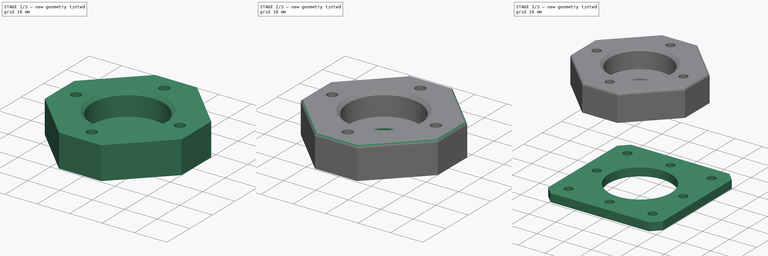
[diagram: build sequence overview — one tinted view per stage of 3, left to right]
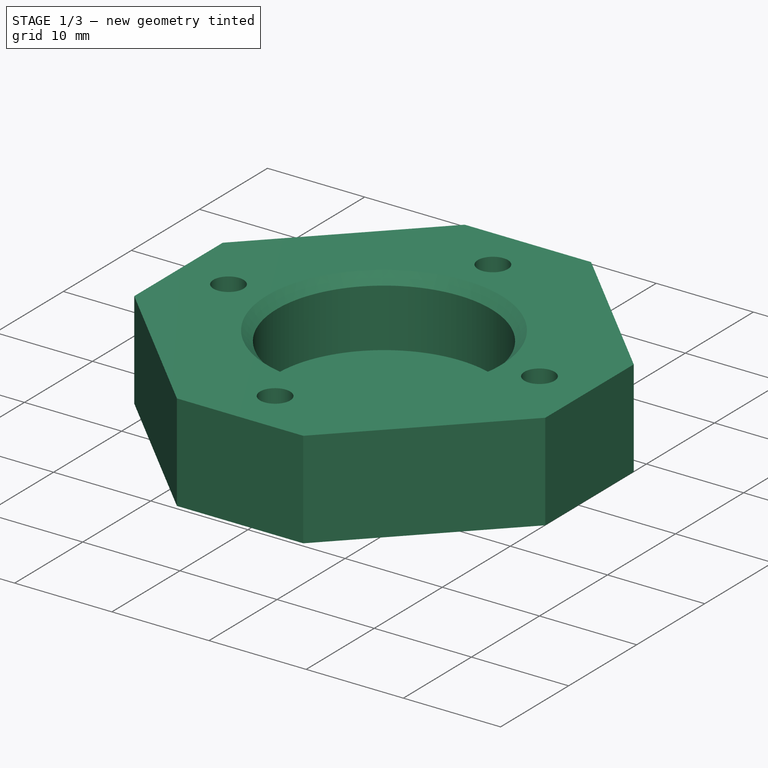
[diagram: stage 1 of 3 — iso view after this stage's code; geometry added in this stage tinted green]
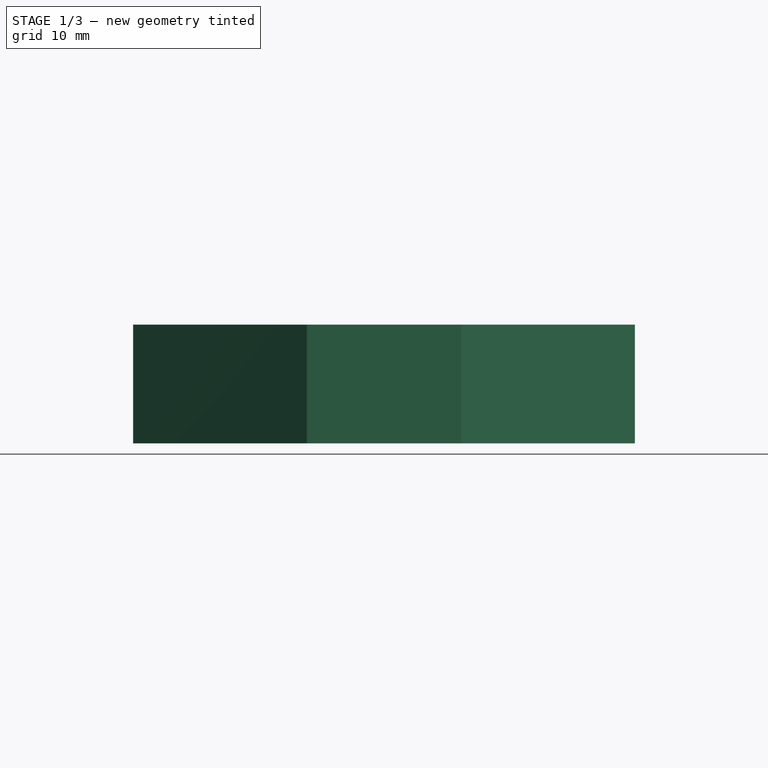
[diagram: stage 1 of 3 — front view after this stage's code; geometry added in this stage tinted green]
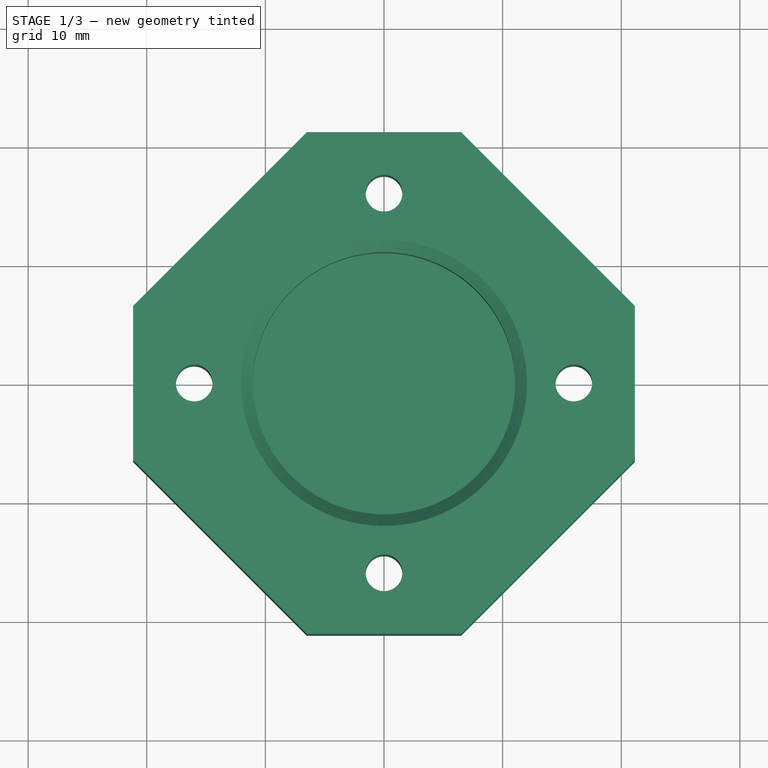
[diagram: stage 1 of 3 — top view after this stage's code; geometry added in this stage tinted green]
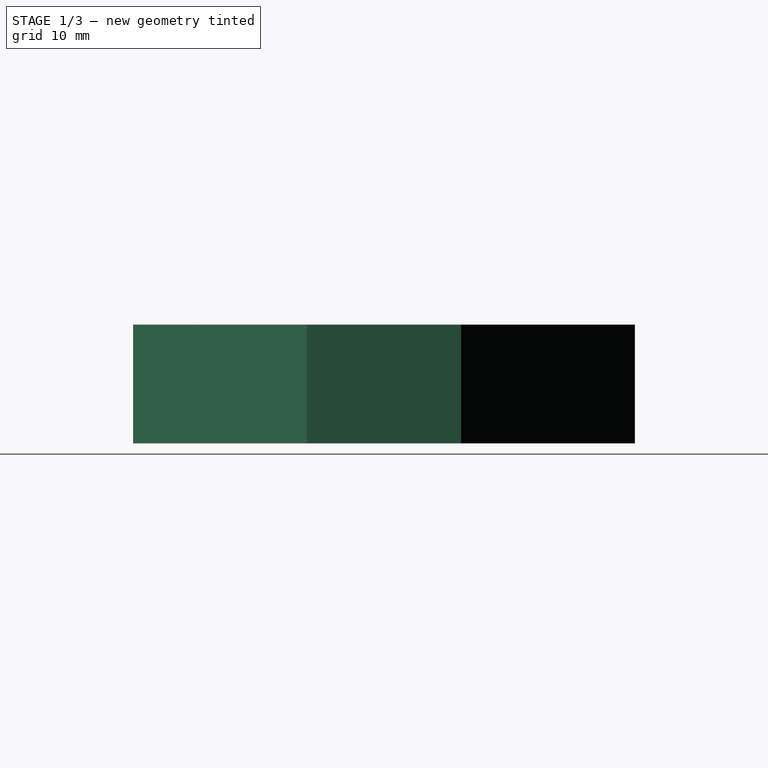
[diagram: stage 1 of 3 — right view after this stage's code; geometry added in this stage tinted green]
FCSTD DOCUMENT  (FreeCAD 0.16R6706 (Git))
Label: ZMotor_Festlager
License: All rights reserved
LicenseURL: http://en.wikipedia.org/wiki/All_rights_reserved
objects: Sketcher::SketchObject×5, PartDesign::Pocket×3, PartDesign::Pad×2, PartDesign::Chamfer×2, PartDesign::Fillet×1
note: 18 computed .brp shape members not serialized (recipe doc carries the construction recipe); baked Part::Feature solids carry a one-line shape summary decoded from their .brp

FEATURE [Sketcher::SketchObject] Sketch002
  Placement = pos=(0,0,33) rot=(0,0,1;0rad)
  sketch-geometry (13):
    g0: LineSegment StartX=21.15 StartY=-6.5 StartZ=0 EndX=21.15 EndY=6.5 EndZ=0
    g1: LineSegment StartX=21.15 StartY=6.5 StartZ=0 EndX=6.5 EndY=21.15 EndZ=0
    g2: LineSegment StartX=6.5 StartY=21.15 StartZ=0 EndX=-6.5 EndY=21.15 EndZ=0
    g3: LineSegment StartX=-6.5 StartY=21.15 StartZ=0 EndX=-21.15 EndY=6.5 EndZ=0
    g4: LineSegment StartX=-21.15 StartY=6.5 StartZ=0 EndX=-21.15 EndY=-6.5 EndZ=0
    g5: LineSegment StartX=-21.15 StartY=-6.5 StartZ=0 EndX=-6.5 EndY=-21.15 EndZ=0
    g6: LineSegment StartX=-6.5 StartY=-21.15 StartZ=0 EndX=6.5 EndY=-21.15 EndZ=0
    g7: LineSegment StartX=6.5 StartY=-21.15 StartZ=0 EndX=21.15 EndY=-6.5 EndZ=0
    g8: Circle [constr] CenterX=0 CenterY=0 CenterZ=0 NormalX=0 NormalY=0 NormalZ=1 Radius=22.1263
    g9: Circle CenterX=-16 CenterY=0 CenterZ=0 NormalX=0 NormalY=0 NormalZ=1 Radius=1.55
    g10: Circle CenterX=0 CenterY=16 CenterZ=0 NormalX=0 NormalY=0 NormalZ=1 Radius=1.55
    g11: Circle CenterX=16 CenterY=0 CenterZ=0 NormalX=0 NormalY=0 NormalZ=1 Radius=1.55
    g12: Circle CenterX=0 CenterY=-16 CenterZ=0 NormalX=0 NormalY=0 NormalZ=1 Radius=1.55
  constraints (38):
    c: Coincident(g0,g1)
    c: Coincident(g1,g2)
    c: Coincident(g2,g3)
    c: Coincident(g3,g4)
    c: Coincident(g4,g5)
    c: Coincident(g5,g6)
    c: Coincident(g6,g7)
    c: Coincident(g7,g0)
    c: PointOnObject(g0,g8)
    c: PointOnObject(g1,g8)
    c: PointOnObject(g2,g8)
    c: PointOnObject(g3,g8)
    c: PointOnObject(g4,g8)
    c: PointOnObject(g5,g8)
    c: PointOnObject(g6,g8)
    c: PointOnObject(g7,g8)
    c: Coincident(g8,g-1)
    c: Horizontal(g2)
    c: Horizontal(g6)
    c: Equal(g6,g2)
    c: DistanceY(g5,g2) = 42.3
    c: DistanceX(g4,g0) = 42.3
    c: Vertical(g0)
    c: Vertical(g4)
    c: Equal(g0,g4)
    c: DistanceX(g2,g2) = 13
    c: PointOnObject(g9,g-1)
    c: Radius(g9) = 1.55
    c: DistanceX(g9,g-1) = 16
    c: PointOnObject(g10,g-2)
    c: PointOnObject(g11,g-1)
    c: PointOnObject(g12,g-2)
    c: Equal(g9,g10)
    c: Equal(g10,g11)
    c: Equal(g11,g12)
    c: Symmetric(g9,g11,g-2)
    c: Symmetric(g12,g10,g-1)
    c: DistanceY(g12,g-1) = 16
FEATURE [PartDesign::Pad] Pad001
  Length = 10
  Length2 = 100
  Placement = pos=(0,0,33) rot=(0,0,1;0rad)
  Sketch = -> Sketch002
  Type = 0
FEATURE [Sketcher::SketchObject] Sketch003
  Placement = pos=(0,0,43) rot=(0,0,1;0rad)
  Support = -> Pad001 [Face14]
  sketch-geometry (1):
    g0: Circle CenterX=0 CenterY=0 CenterZ=0 NormalX=0 NormalY=0 NormalZ=1 Radius=11.05
  constraints (2):
    c: Coincident(g0,g-1)
    c: Radius(g0) = 11.05
FEATURE [PartDesign::Pocket] Pocket001
  Length = 7
  Placement = pos=(0,0,33) rot=(0,0,1;0rad)
  Sketch = -> Sketch003
  Type = 0
FEATURE [PartDesign::Chamfer] Chamfer001
  Base = -> Pocket001 [Edge26]
  Placement = pos=(0,0,33) rot=(0,0,1;0rad)
  Size = 1
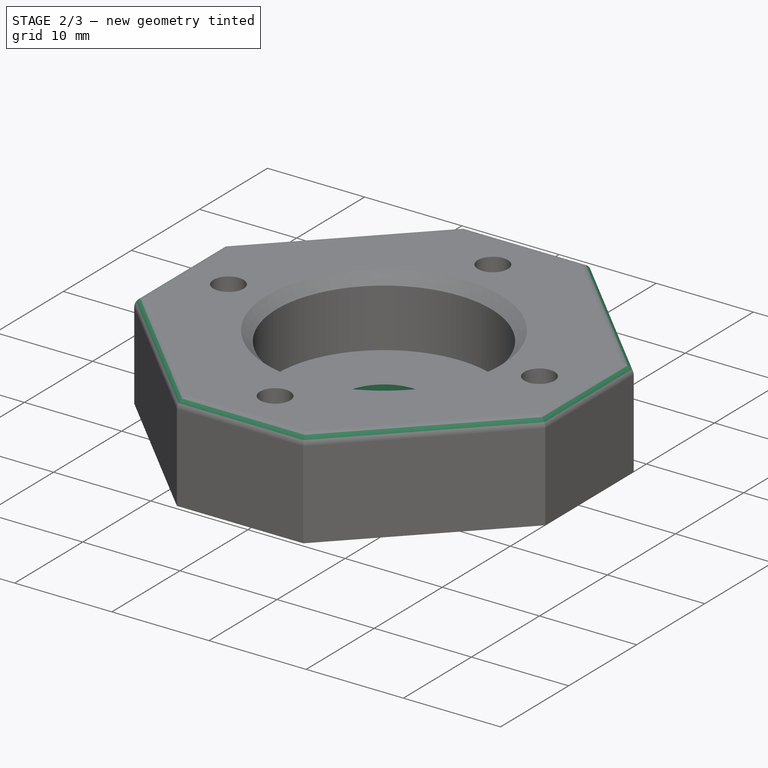
[diagram: stage 2 of 3 — iso view after this stage's code; geometry added in this stage tinted green]
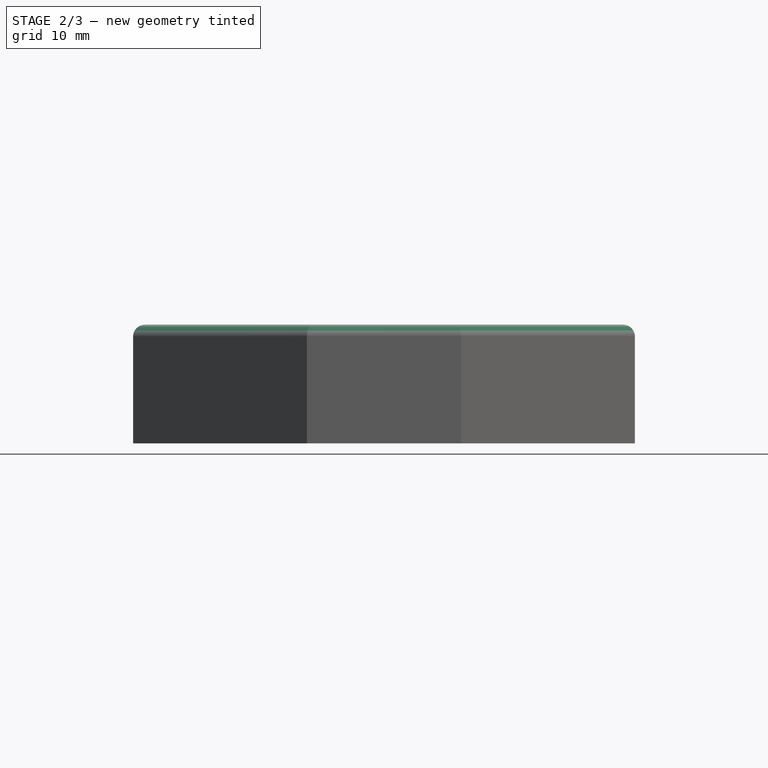
[diagram: stage 2 of 3 — front view after this stage's code; geometry added in this stage tinted green]
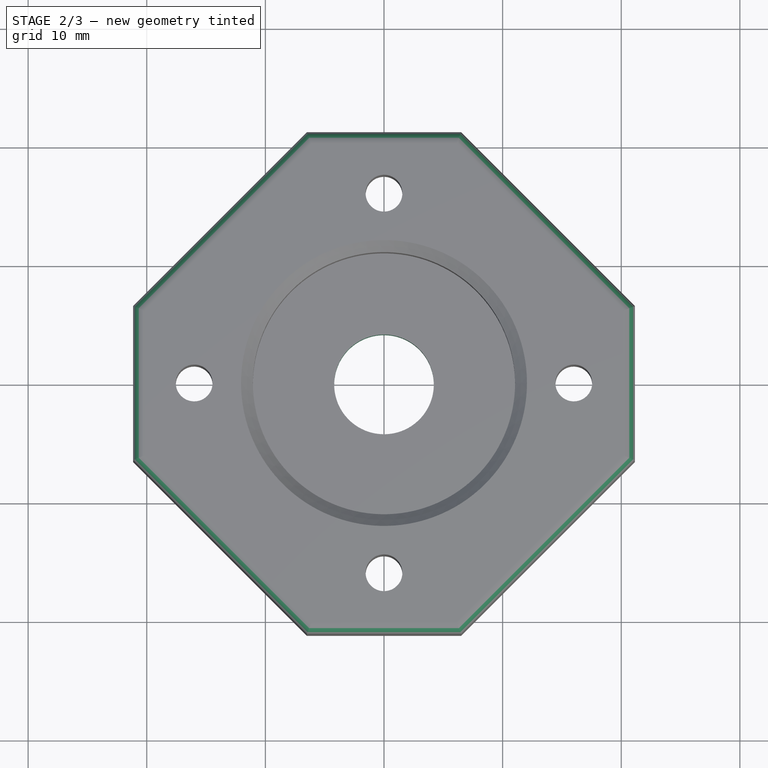
[diagram: stage 2 of 3 — top view after this stage's code; geometry added in this stage tinted green]
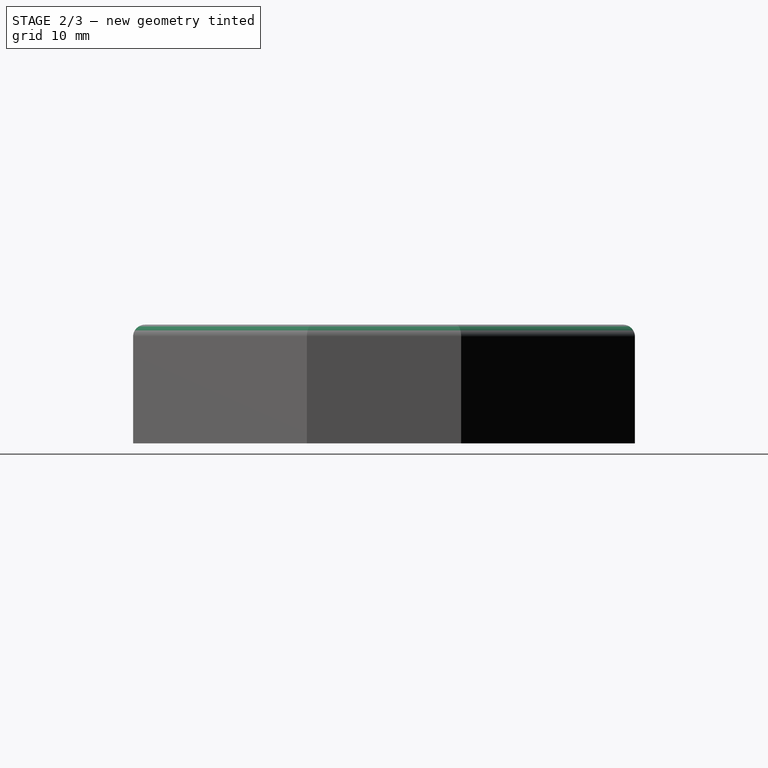
[diagram: stage 2 of 3 — right view after this stage's code; geometry added in this stage tinted green]
FEATURE [Sketcher::SketchObject] Sketch004
  Placement = pos=(0,0,36) rot=(0,0,1;0rad)
  Support = -> Chamfer001 [Face17]
  sketch-geometry (1):
    g0: Circle CenterX=0 CenterY=0 CenterZ=0 NormalX=0 NormalY=0 NormalZ=1 Radius=4.2
  constraints (2):
    c: Coincident(g0,g-1)
    c: Radius(g0) = 4.2
FEATURE [PartDesign::Pocket] Pocket002
  Length = 3
  Placement = pos=(0,0,33) rot=(0,0,1;0rad)
  Sketch = -> Sketch004
  Type = 0
FEATURE [PartDesign::Fillet] Fillet  label="Lagersitz"
  Base = -> Pocket002 [Edge6,Edge8,Edge4,Edge2,Edge3,Edge5,Edge7,Edge9]
  Placement = pos=(0,0,33) rot=(0,0,1;0rad)
  Radius = 1
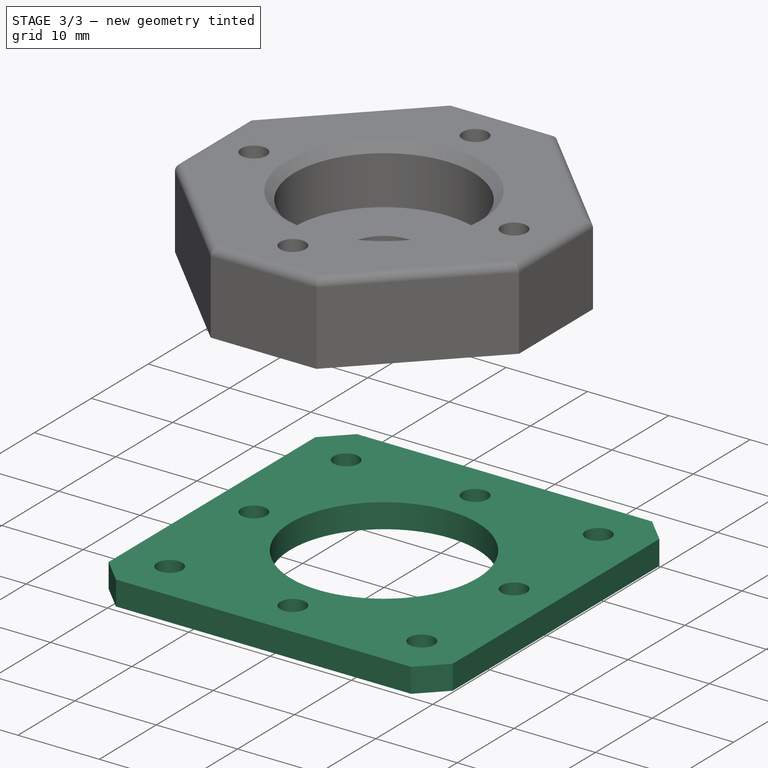
[diagram: stage 3 of 3 — iso view after this stage's code; geometry added in this stage tinted green]
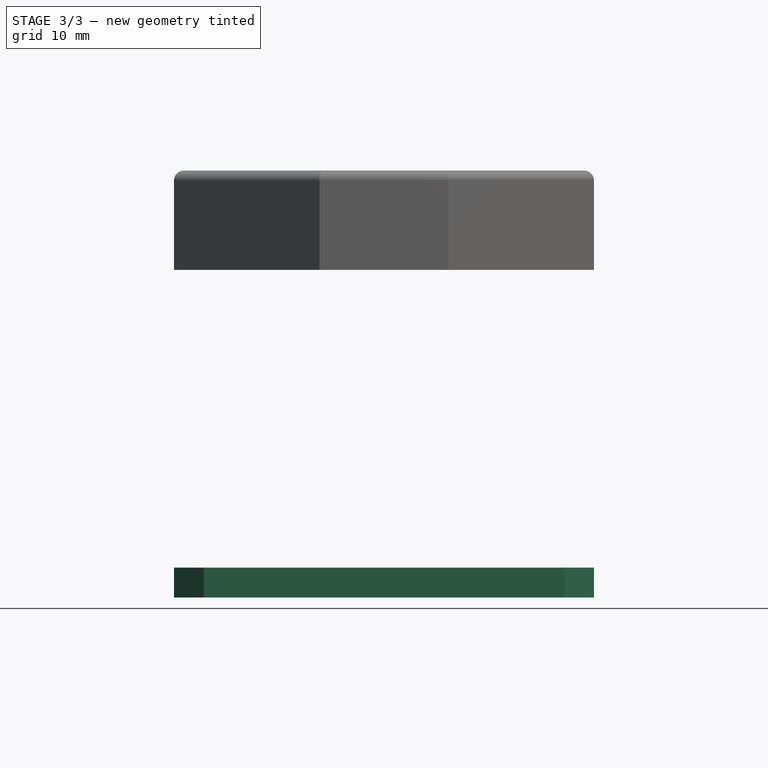
[diagram: stage 3 of 3 — front view after this stage's code; geometry added in this stage tinted green]
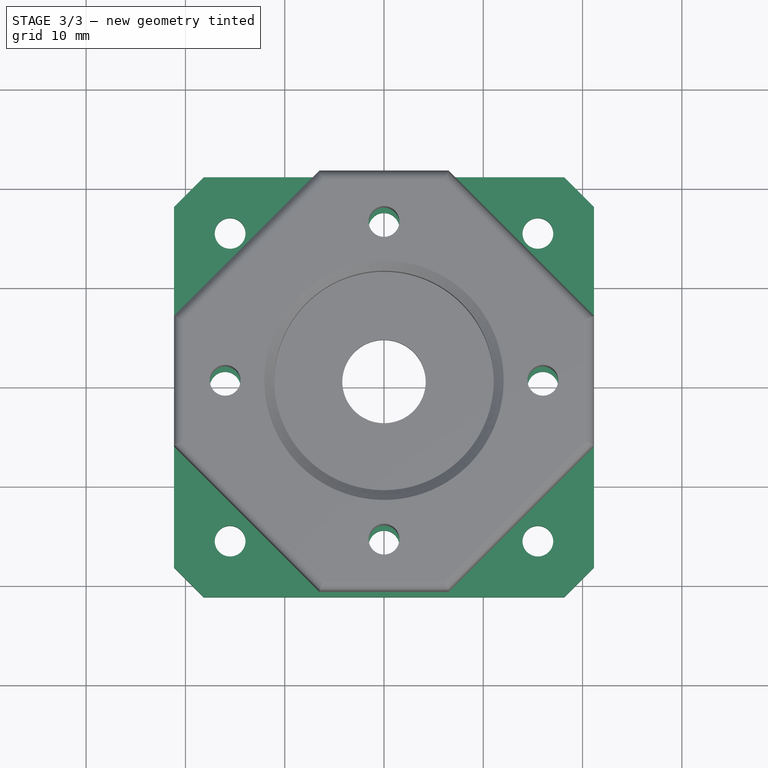
[diagram: stage 3 of 3 — top view after this stage's code; geometry added in this stage tinted green]
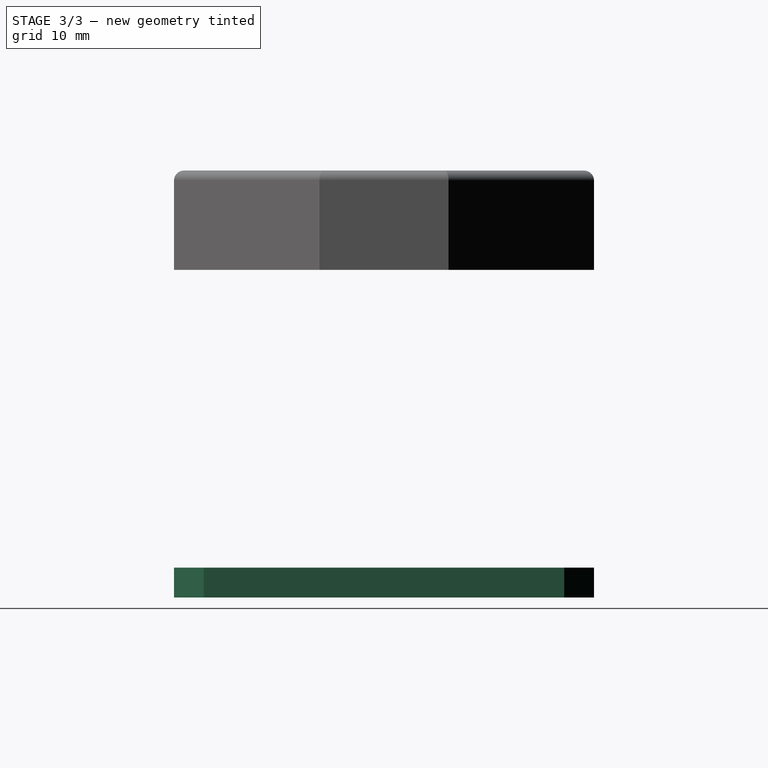
[diagram: stage 3 of 3 — right view after this stage's code; geometry added in this stage tinted green]
FEATURE [Sketcher::SketchObject] Sketch
  sketch-geometry (13):
    g0: LineSegment StartX=-21.15 StartY=21.15 StartZ=0 EndX=21.15 EndY=21.15 EndZ=0
    g1: LineSegment StartX=21.15 StartY=21.15 StartZ=0 EndX=21.15 EndY=-21.15 EndZ=0
    g2: LineSegment StartX=21.15 StartY=-21.15 StartZ=0 EndX=-21.15 EndY=-21.15 EndZ=0
    g3: LineSegment StartX=-21.15 StartY=-21.15 StartZ=0 EndX=-21.15 EndY=21.15 EndZ=0
    g4: Circle CenterX=-15.5 CenterY=15.5 CenterZ=0 NormalX=0 NormalY=0 NormalZ=1 Radius=1.55
    g5: Circle CenterX=15.5 CenterY=15.5 CenterZ=0 NormalX=0 NormalY=0 NormalZ=1 Radius=1.55
    g6: Circle CenterX=-15.5 CenterY=-15.5 CenterZ=0 NormalX=0 NormalY=0 NormalZ=1 Radius=1.55
    g7: Circle CenterX=15.5 CenterY=-15.5 CenterZ=0 NormalX=0 NormalY=0 NormalZ=1 Radius=1.55
    g8: Circle CenterX=0 CenterY=0 CenterZ=0 NormalX=0 NormalY=0 NormalZ=1 Radius=11.5
    g9: Circle CenterX=-16 CenterY=0 CenterZ=0 NormalX=0 NormalY=0 NormalZ=1 Radius=1.55
    g10: Circle CenterX=16 CenterY=0 CenterZ=0 NormalX=0 NormalY=0 NormalZ=1 Radius=1.55
    g11: Circle CenterX=0 CenterY=-16 CenterZ=0 NormalX=0 NormalY=0 NormalZ=1 Radius=1.55
    g12: Circle CenterX=0 CenterY=16 CenterZ=0 NormalX=0 NormalY=0 NormalZ=1 Radius=1.55
  constraints (35):
    c: Coincident(g0,g1)
    c: Coincident(g1,g2)
    c: Coincident(g2,g3)
    c: Coincident(g3,g0)
    c: Horizontal(g0)
    c: Horizontal(g2)
    c: Vertical(g1)
    c: Vertical(g3)
    c: Symmetric(g0,g0,g-2)
    c: Symmetric(g0,g2,g-1)
    c: DistanceX(g0,g0) = 42.3
    c: DistanceY(g3,g3) = 42.3
    c: DistanceX(g4) = -15.5
    c: DistanceY(g4) = 15.5
    c: Radius(g4) = 1.55
    c: Symmetric(g4,g5,g-2)
    c: Symmetric(g4,g6,g-1)
    c: Symmetric(g5,g7,g-1)
    c: Equal(g4,g5)
    c: Equal(g5,g7)
    c: Equal(g7,g6)
    c: Coincident(g8,g-1)
    c: Radius(g8) = 11.5
    c: PointOnObject(g9,g-1)
    c: PointOnObject(g10,g-1)
    c: PointOnObject(g11,g-2)
    c: PointOnObject(g12,g-2)
    c: Radius(g9) = 1.55
    c: Equal(g9,g11)
    c: Equal(g11,g10)
    c: Equal(g10,g12)
    c: DistanceY(g11,g-1) = 16
    c: DistanceX(g-1,g10) = 16
    c: Symmetric(g11,g12,g-1)
    c: Symmetric(g9,g10,g-2)
FEATURE [PartDesign::Pad] Pad
  Length = 3
  Length2 = 100
  Sketch = -> Sketch
  Type = 0
FEATURE [Sketcher::SketchObject] Sketch001
  Placement = pos=(0,0,0) rot=(1,0,0;3.14159rad)
  Support = -> Pad [Face14]
  sketch-geometry (4):
    g0: Circle CenterX=-16 CenterY=0 CenterZ=0 NormalX=0 NormalY=0 NormalZ=1 Radius=3.5
    g1: Circle CenterX=16 CenterY=0 CenterZ=0 NormalX=0 NormalY=0 NormalZ=1 Radius=3.5
    g2: Circle CenterX=0 CenterY=16 CenterZ=0 NormalX=0 NormalY=0 NormalZ=1 Radius=3.5
    g3: Circle CenterX=0 CenterY=-16 CenterZ=0 NormalX=0 NormalY=0 NormalZ=1 Radius=3.5
  constraints (12):
    c: PointOnObject(g0,g-1)
    c: PointOnObject(g1,g-1)
    c: PointOnObject(g2,g-2)
    c: PointOnObject(g3,g-2)
    c: Radius(g0) = 3.5
    c: Equal(g0,g2)
    c: Equal(g2,g1)
    c: Equal(g1,g3)
    c: Symmetric(g0,g1,g-2)
    c: Symmetric(g2,g3,g-1)
    c: DistanceX(g0,g-1) = 16
    c: DistanceY(g3,g-1) = 16
FEATURE [PartDesign::Pocket] Pocket
  Length = 1.5
  Sketch = -> Sketch001
  Type = 0
FEATURE [PartDesign::Chamfer] Chamfer  label="Grundplatte"
  Base = -> Pocket [Edge5,Edge1,Edge2,Edge8]
  Size = 3
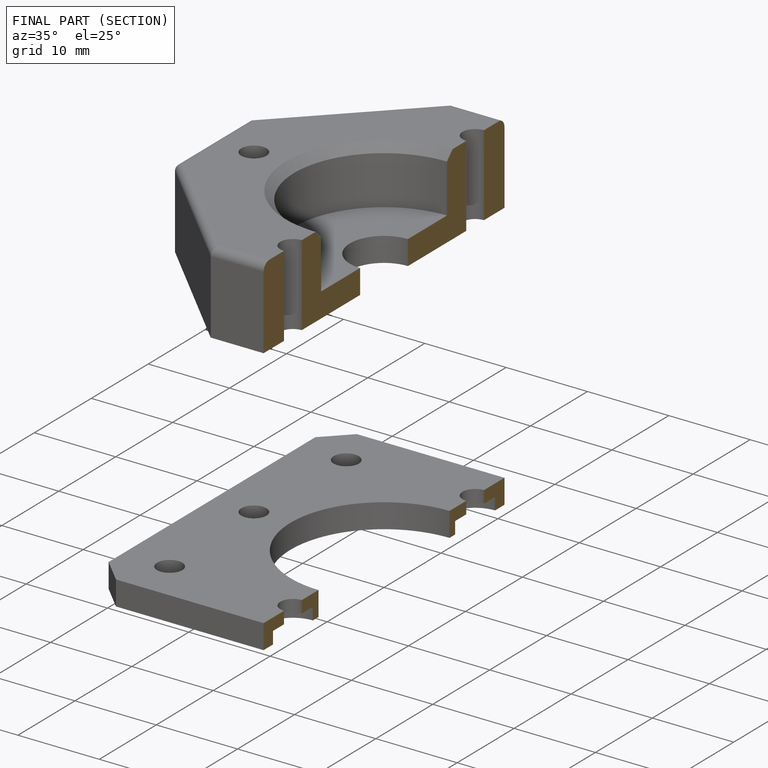
[diagram: finished part — half-section view (interior)]
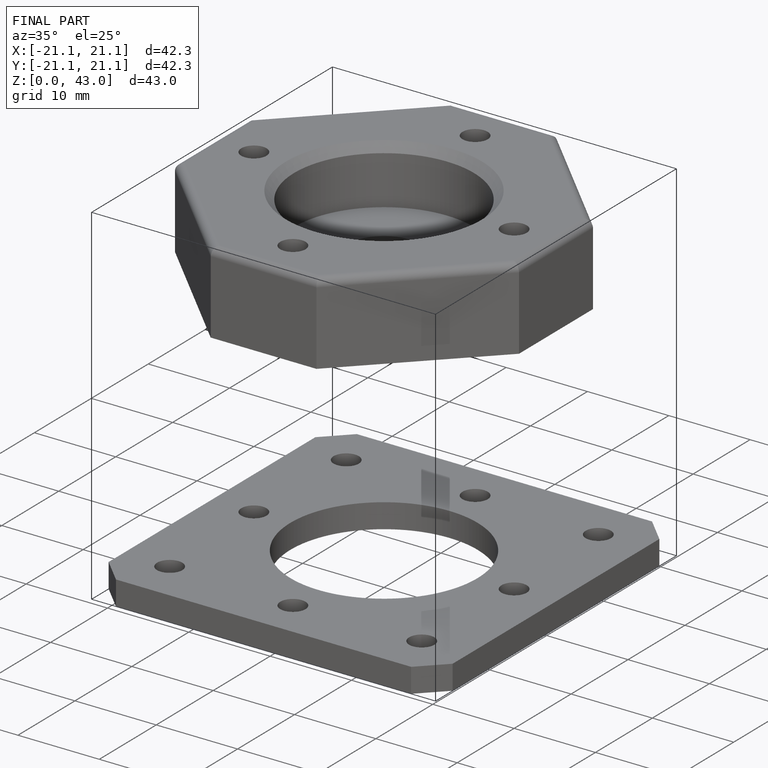
[diagram: finished part — iso view with bounding-box wireframe]
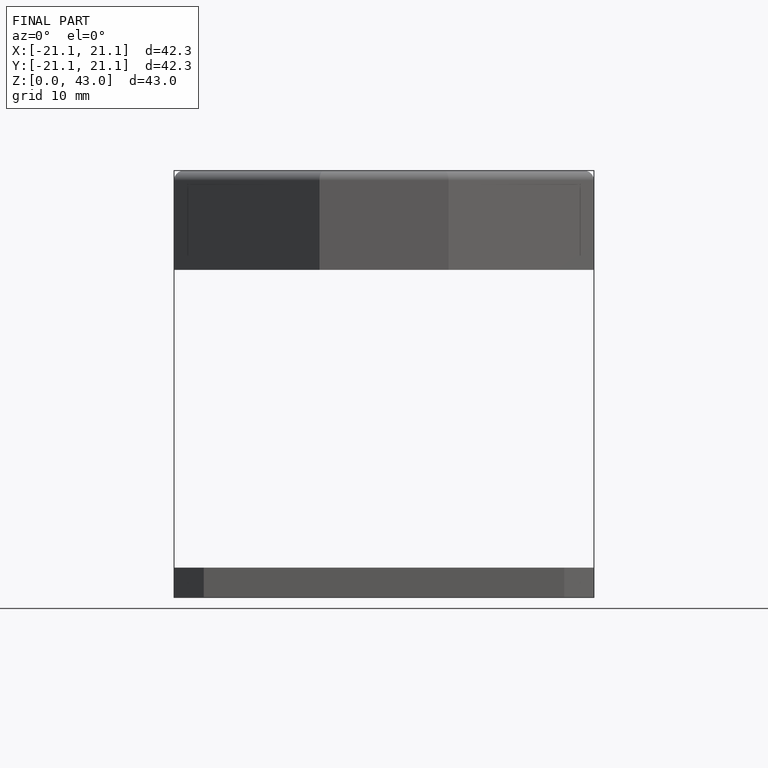
[diagram: finished part — front view with bounding-box wireframe]
